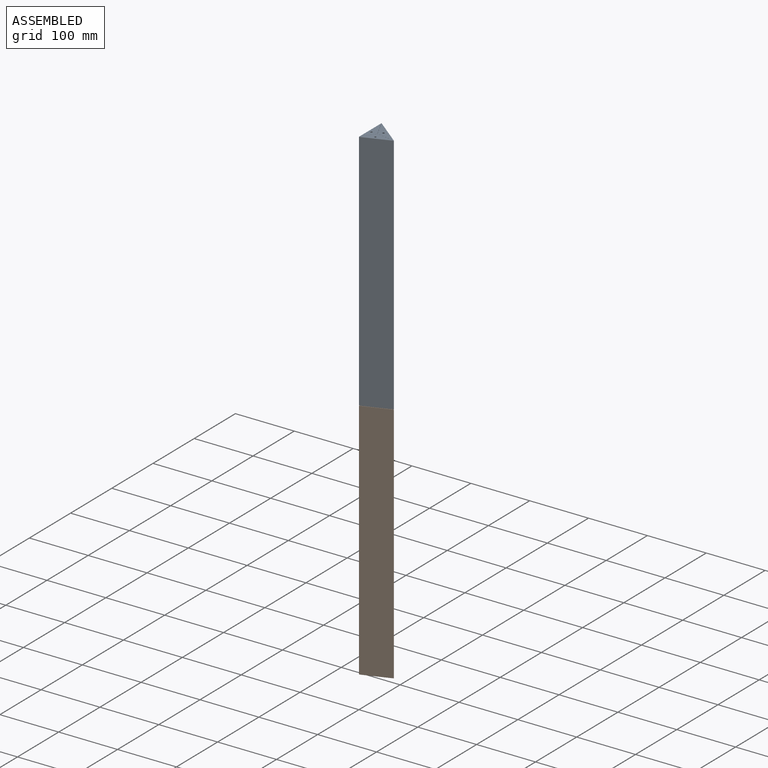
[diagram: assembled view]
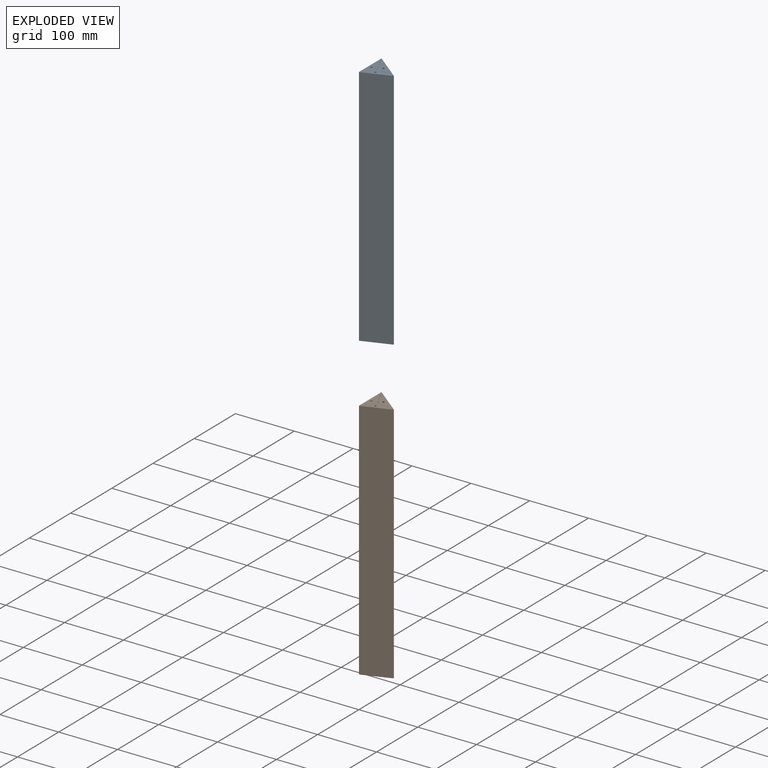
[diagram: exploded view]
GUIDED TOUR — FREECAD ASSEMBLY "composit_stand3_tech_sector_pillar_model"

This assembly has 2 components, labeled P0..P1 below (a component is one placed body or linked part; the same part can appear more than once), held together by 0 modeled joints plus 1 derived contact edge. A joint is a constraint between two components; its type names the relative motion it leaves free:
  CONTACT — a derived adjacency edge — the two components touch in the source model (clearance under 2% of the assembly's diagonal); it is measured from the geometry, not a modeled constraint.
Axis/direction vectors are unit vectors and 'through' points are millimeter coordinates, both in the assembly's world frame.

MATES
  1. CONTACT "contact_0_1": P0 <-> P1, contact direction (0.000, 0.000, -1.000) through (22.91, 29.44, 0.00) mm (derived from contact, not a modeled constraint)

ASSEMBLY ORDER
  1. P1 — the base component [order verified]
  2. P0 [order verified]
Order-tag legend:
  [order verified] — this step's position reverses a verified removal order: the component was checked to insert without passing through the ones already placed.

Of the 2 components, 2 carry a construction recipe — the FreeCAD feature program (sketches with constraints, then the solid features that consume them) that regenerates the part from scratch, quoted from this document or from the linked companion document it references; the rest are supplied as boundary geometry only. The tour below walks the components in assembly order: each is shown spotlighted twice — in the assembled view, then in the exploded view, where a leader line traces a displaced component back to its assembled socket (components that stay in place when exploded have no leader line; saturated green if recipe-attached, orange if geometry-only; every other component desaturated gray) — followed by its recipe or geometry summary and the mates that hold it.
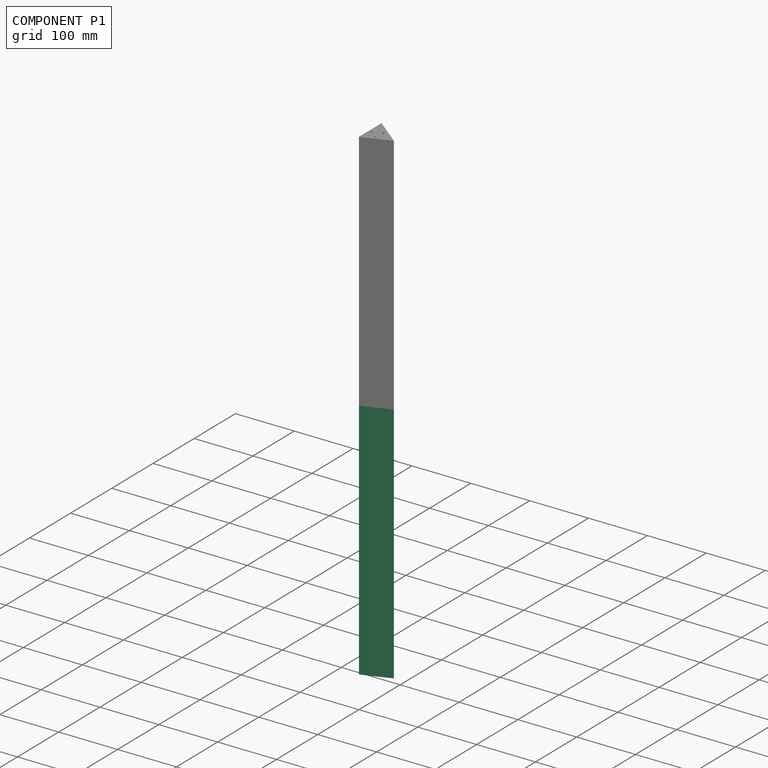
[diagram: component P1 — assembled]
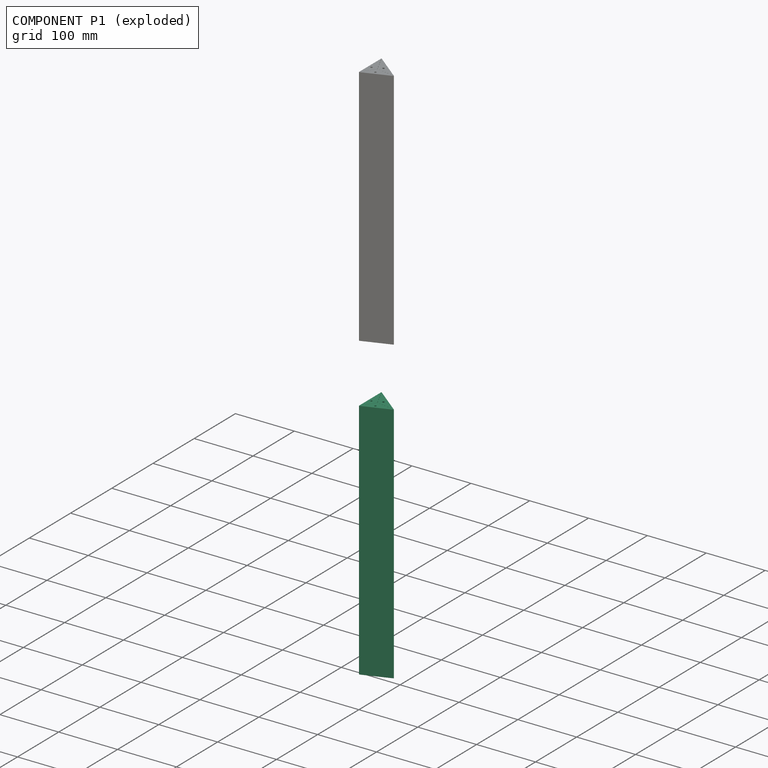
[diagram: component P1 — exploded]
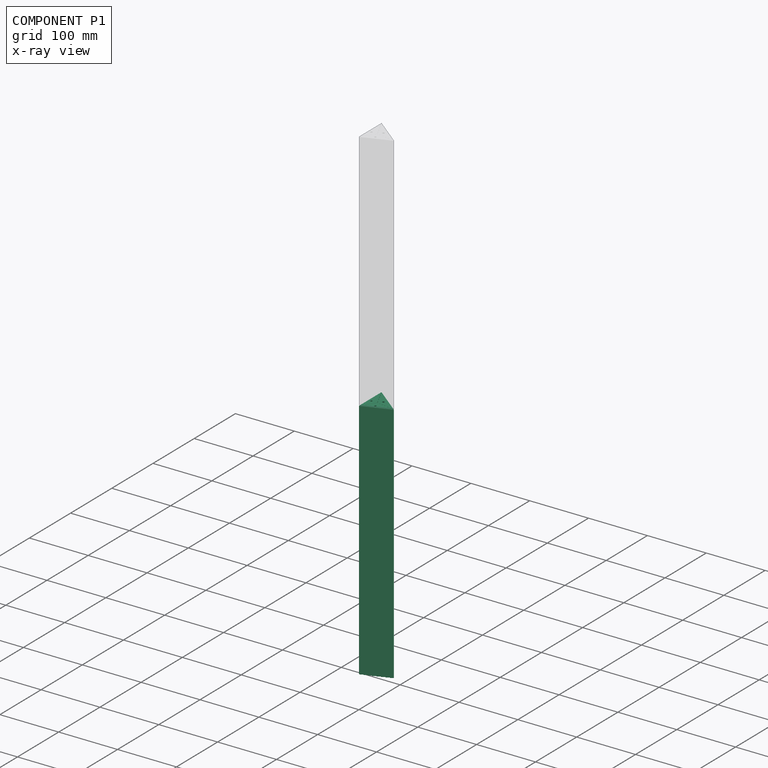
[diagram: component P1 — x-ray view]
COMPONENT P1 — recipe-attached ("pillar_mirror", modeled in this document).
Held by: resting contact with P0 (derived edge).
Construction recipe (the document's own serialized feature program — sketch geometry with constraints, then the solid features built on it; lengths are millimeters unless a unit is written):

FEATURE [PartDesign::FeatureBase] BaseFeature
  BaseFeature = -> Part__Mirroring
  Suppressed = false
FEATURE [PartDesign::CoordinateSystem] Local_CS001  label="mirror_LCS"
  AttacherType = Attacher::AttachEngine3D
  AttachmentOffset = pos=(-3.6e-15,55,-413) rot=(0,0,1;2.47164rad)
  AttachmentSupport = -> [XY_Plane002]
  MapMode = 5
  Placement = pos=(-3.6e-15,55,-413) rot=(0,0,1;2.47164rad)
  expr: AttachmentOffset = placement(vector(0; 0; -(<<composit_stand3_tech_sector_main>>#<<Properties>>.height - 6 mm)); rotation(0; 0; 0)) * <<front_support_intersection_placement>>.LinkedObject.Placement
FEATURE [PartDesign::Body] Body002  label="pillar_mirror"
  AllowCompound = false
  BaseFeature = -> Part__Mirroring
  Group = -> [BaseFeature,Local_CS001]
  Origin = -> Origin002
  Tip = -> BaseFeature
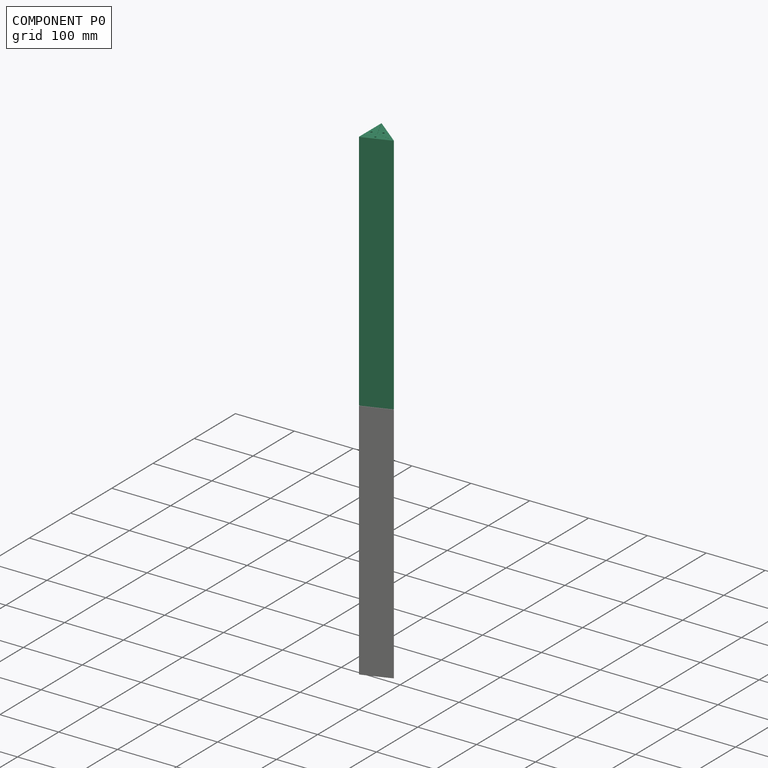
[diagram: component P0 — assembled]
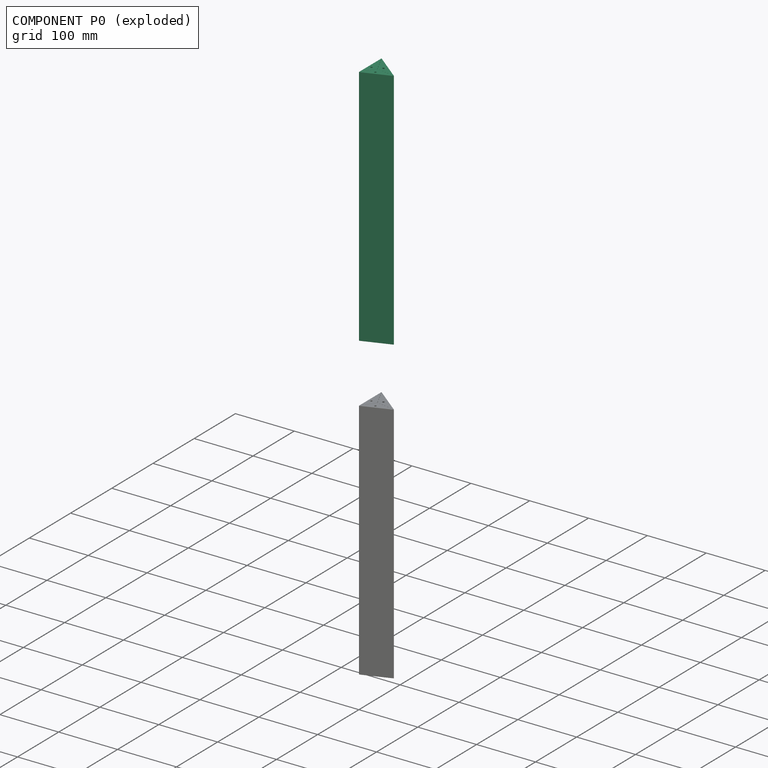
[diagram: component P0 — exploded]
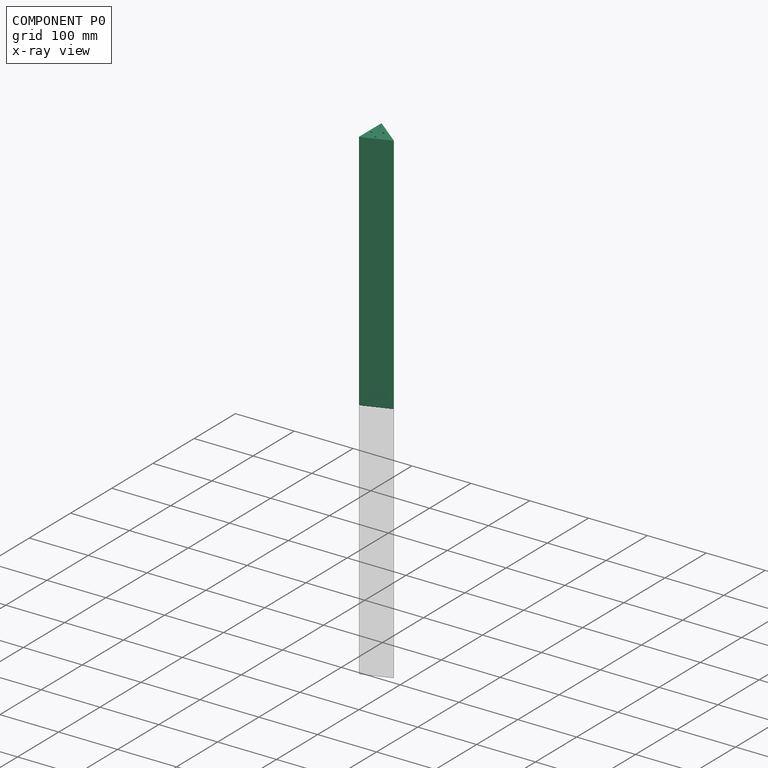
[diagram: component P0 — x-ray view]
COMPONENT P0 — recipe-attached ("pillar", modeled in this document).
Held by: resting contact with P1 (derived edge).
Construction recipe (the document's own serialized feature program — sketch geometry with constraints, then the solid features built on it; lengths are millimeters unless a unit is written):

FEATURE [PartDesign::SubShapeBinder] Binder001
  BindCopyOnChange = 0
  BindMode = 0
  ClaimChildren = true
  Context = -> Body [Binder001.]
  Fuse = false
  MakeFace = true
  OffsetFill = false
  OffsetIntersection = false
  OffsetJoinType = 0
  OffsetOpenResult = false
  PartialLoad = false
  Placement = pos=(0,0,0.4) rot=(0,0,1;0rad)
  Relative = false
  Support = -> [Binder]
  _Version = 2
FEATURE [PartDesign::FeaturePython] BaseBend  # WARN: FeaturePython — macro-defined, semantics opaque (R4)
  BendSide = 0
  BendSketch = -> Binder001
  MidPlane = false
  Reverse = false
  Suppressed = false
  length = 412.2
  radius = 0.1
  thickness = 0.3
  expr: length = <<composit_stand3_tech_sector_main>>#<<Properties>>.height - 3 mm * 2 - 0.4 mm * 2
FEATURE [PartDesign::FeaturePython] Bend  # WARN: FeaturePython — macro-defined, semantics opaque (R4)
  AutoMiter = true
  BaseFeature = -> BaseBend
  BendType = 0
  LengthList = [15]
  LengthSpec = 0
  NonperforationMaxLength = 5
  Perforate = false
  PerforationAngle = 0
  PerforationInitialLength = 5
  PerforationMaxLength = 5
  ReliefFactor = 0.7
  Suppressed = false
  UseReliefFactor = false
  angle = 90
  baseObject = -> BaseBend [Edge11,Edge26,Edge42,Edge14,Edge29,Edge43]
  bendAList = [90]
  extend1 = 0
  extend2 = 0
  gap1 = 0
  gap2 = 0
  invert = false
  kfactor = 0.5
  length = 15
  maxExtendDist = 5
  minGap = 0.2
  minReliefGap = 1
  miterangle1 = 0
  miterangle2 = 0
  offset = 0
  radius = 0.1
  reliefType = 0
  reliefd = 1
  reliefw = 0.8
  sketchflip = false
  sketchinvert = false
  unfold = false
  expr: radius = BaseBend.radius
FEATURE [PartDesign::CoordinateSystem] Local_CS  label="edge_LCS"
  AttacherType = Attacher::AttachEngine3D
  AttachmentOffset = pos=(-3.6e-15,55,0) rot=(0,0,1;2.47164rad)
  AttachmentSupport = -> [XY_Plane]
  MapMode = 5
  Placement = pos=(-3.6e-15,55,0) rot=(0,0,1;2.47164rad)
  expr: AttachmentOffset = <<front_support_intersection_placement>>.LinkedObject.Placement
FEATURE [PartDesign::Boolean] Boolean
  BaseFeature = -> Bend
  Group = -> [Fusion]
  Suppressed = false
  Type = 1
  UsePlacement = true
FEATURE [PartDesign::Body] Body  label="pillar"
  AllowCompound = false
  Group = -> [Binder001,BaseBend,Bend,Local_CS,Boolean]
  Origin = -> Origin
  Tip = -> Boolean
PROVENANCE & LICENSES
Assembly and component geometry: a FreeCAD (.FCStd) document from a public repository crawl; components, placements and joints were extracted with FreeCAD and each solid tessellated.
Construction recipes: the document's own serialized feature recipes (and, for linked parts, the recipes of companion documents from the same project).
License: as declared in the source repository (recorded in the dataset sidecar).
Joints: native FreeCAD joints and A2plus constraints are mapped to standard mate types; edges marked 'derived from contact' connect touching components and are measured from the geometry, not modeled.
Verification: 2 of this assembly's 2 components carry a construction recipe (2 from this document itself); the rest are geometry-only. Every component's tessellation passed the extraction mesh gates (mesh-volume checksum against the B-rep where available, bounding-box inflation <= 2%).
Renders: orthographic iso camera (az 35 / el 25); the floor grid conveys scale (grid pitch printed in each image; no ruler). In the exploded view each component is displaced by its stored offset vector: the offsets alone carry the explosion direction (mate normal/axis signs are not orientation cues and do not encode it), and separation distances are assigned per mate-chain, not proportionally to assembly-order depth.
